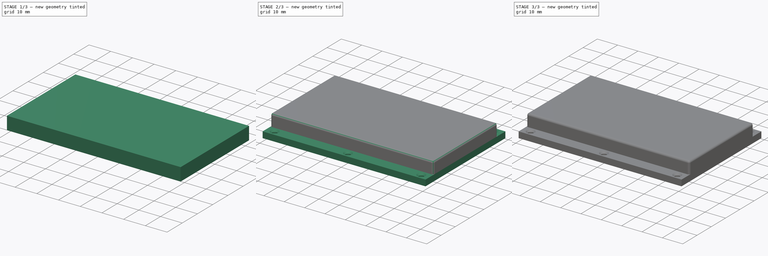
[diagram: build sequence overview — one tinted view per stage of 3, left to right]
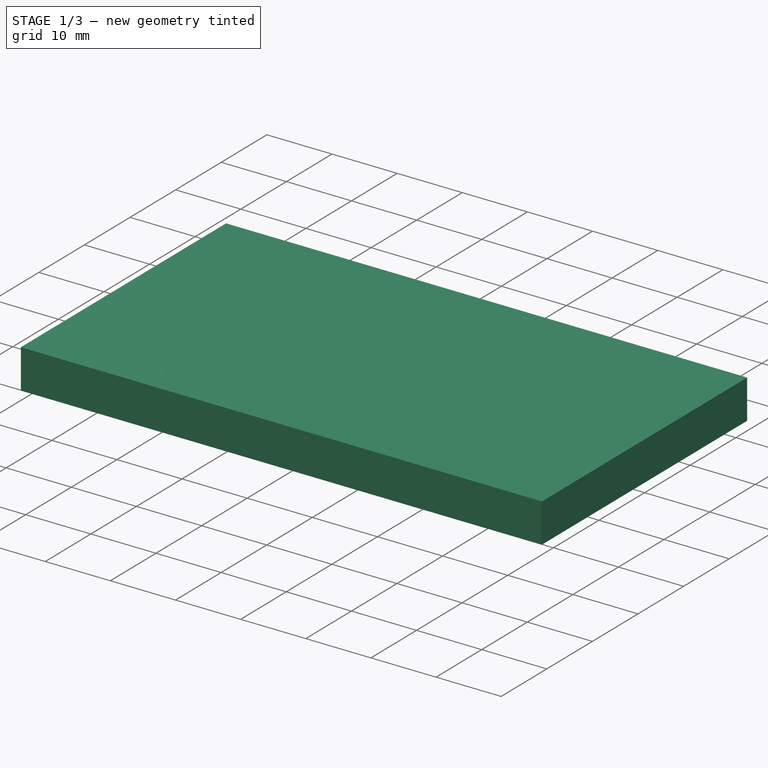
[diagram: stage 1 of 3 — iso view after this stage's code; geometry added in this stage tinted green]
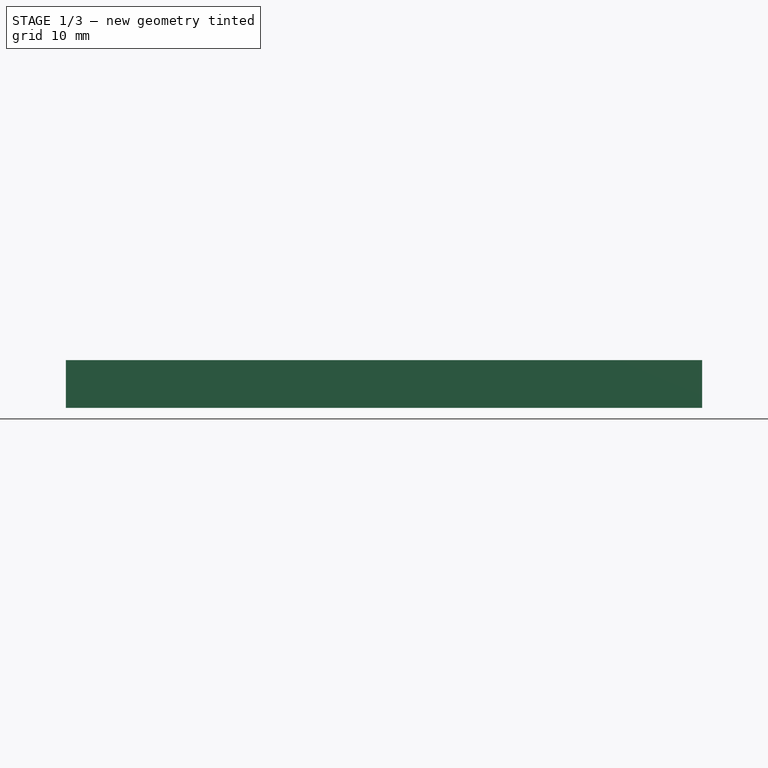
[diagram: stage 1 of 3 — front view after this stage's code; geometry added in this stage tinted green]
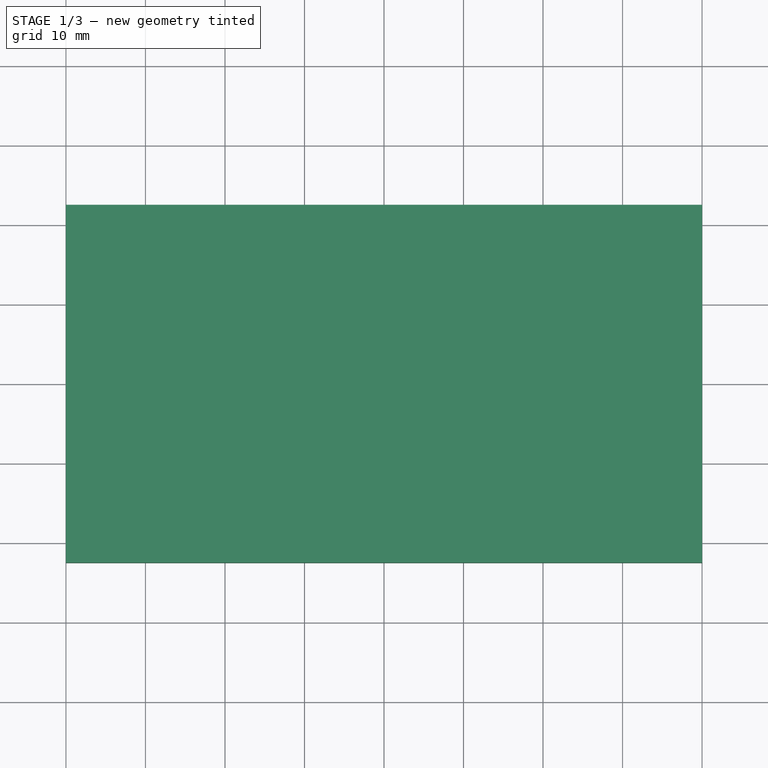
[diagram: stage 1 of 3 — top view after this stage's code; geometry added in this stage tinted green]
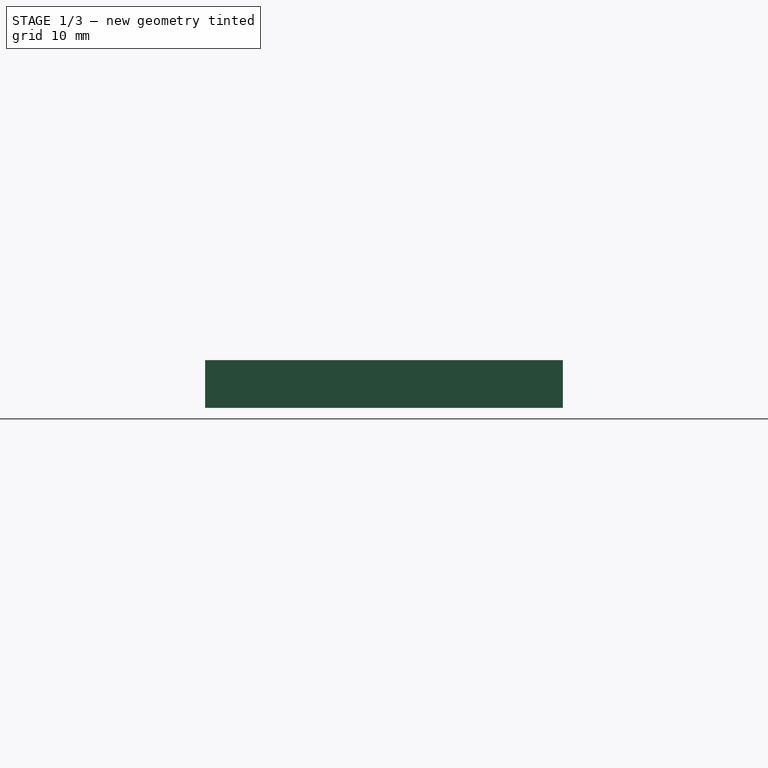
[diagram: stage 1 of 3 — right view after this stage's code; geometry added in this stage tinted green]
FCSTD DOCUMENT  (FreeCAD 0.21R33771 (Git))
Label: CentelladorV2
License: All rights reserved
LicenseURL: http://en.wikipedia.org/wiki/All_rights_reserved
objects: Sketcher::SketchObject×7, PartDesign::Pad×5, PartDesign::Body×3, PartDesign::Hole×1, PartDesign::Fillet×1
note: 24 computed .brp shape members not serialized (recipe doc carries the construction recipe); baked Part::Feature solids carry a one-line shape summary decoded from their .brp

FEATURE [PartDesign::Body] Body003  label="Centellador_1"
  Group = -> [Sketch003,Pad003]
  Origin = -> Origin003
  Tip = -> Pad003
FEATURE [PartDesign::Pad] Pad002
  Direction = (0,0,1)
  Length = 3
  Length2 = 10
  Profile = -> Sketch002
  ReferenceAxis = -> Sketch002 [N_Axis]
  Type = 0
FEATURE [Sketcher::SketchObject] Sketch
  FullyConstrained = true
  MapMode = 5
  Placement = pos=(0,0,3) rot=(0,0,1;0rad)
  Support = -> [Pad002]
  sketch-geometry (5):
    g0: LineSegment StartX=-40 StartY=-22.5 StartZ=0 EndX=-40 EndY=22.5 EndZ=0
    g1: LineSegment StartX=-40 StartY=22.5 StartZ=0 EndX=40 EndY=22.5 EndZ=0
    g2: LineSegment StartX=40 StartY=22.5 StartZ=0 EndX=40 EndY=-22.5 EndZ=0
    g3: LineSegment StartX=40 StartY=-22.5 StartZ=0 EndX=-40 EndY=-22.5 EndZ=0
    g4: GeomPoint X=0 Y=0 Z=0
  constraints (12):
    c: Coincident(g0,g1)
    c: Coincident(g1,g2)
    c: Coincident(g2,g3)
    c: Coincident(g3,g0)
    c: Horizontal(g1)
    c: Horizontal(g3)
    c: Vertical(g0)
    c: Vertical(g2)
    c: Symmetric(g1,g0,g4)
    c: Coincident(g4,g-1)
    c: Distance(g2) = 45
    c: Distance(g3) = 80
FEATURE [PartDesign::Pad] Pad
  BaseFeature = -> Pad002
  Direction = (0,0,1)
  Length = 3
  Length2 = 10
  Profile = -> Sketch
  ReferenceAxis = -> Sketch [N_Axis]
  Type = 0
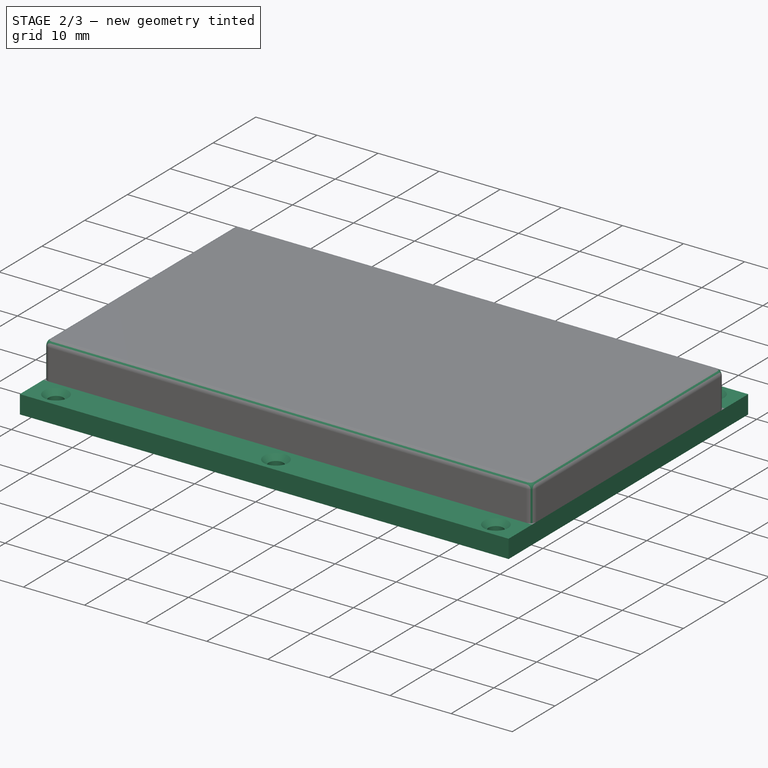
[diagram: stage 2 of 3 — iso view after this stage's code; geometry added in this stage tinted green]
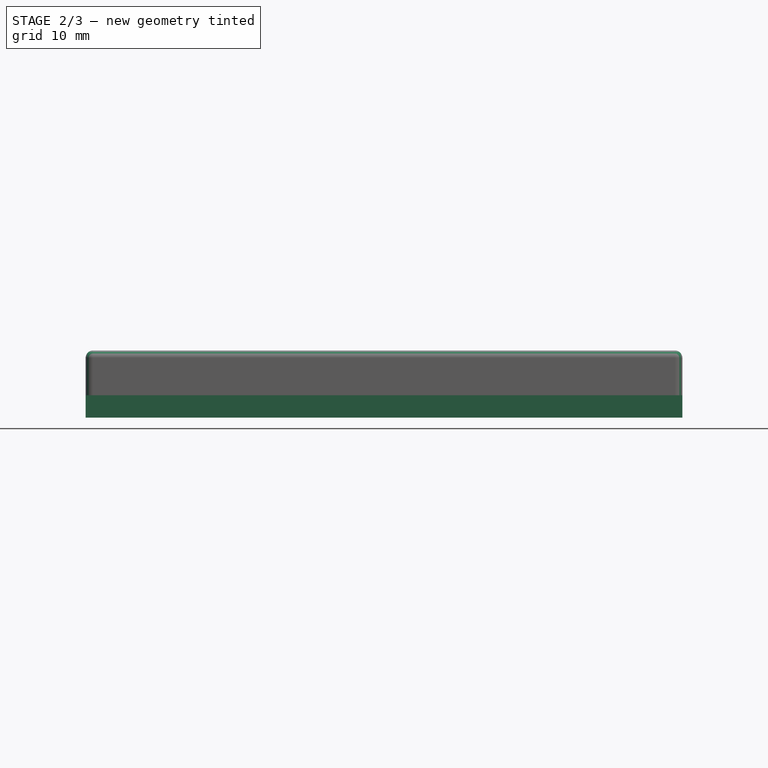
[diagram: stage 2 of 3 — front view after this stage's code; geometry added in this stage tinted green]
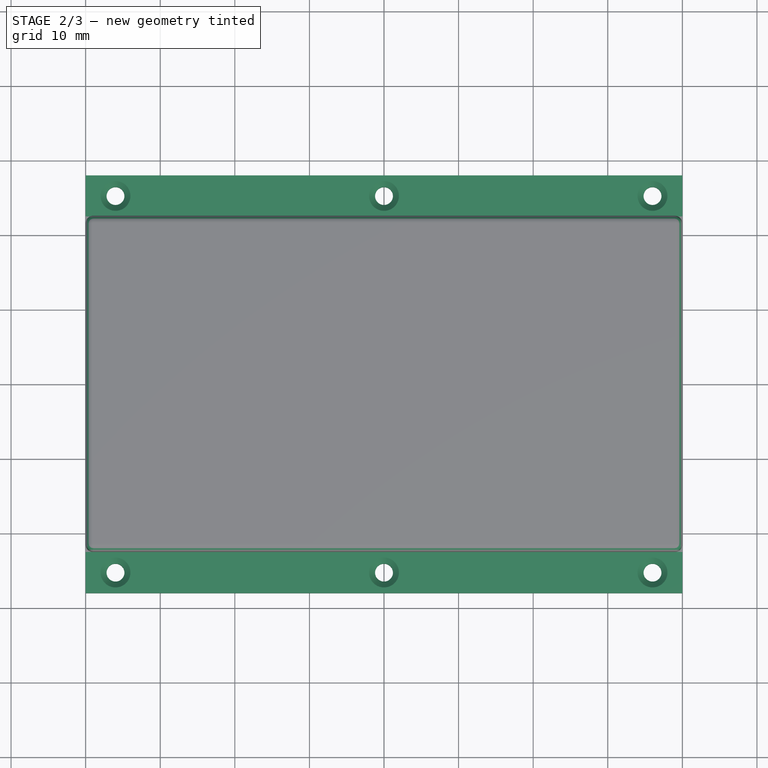
[diagram: stage 2 of 3 — top view after this stage's code; geometry added in this stage tinted green]
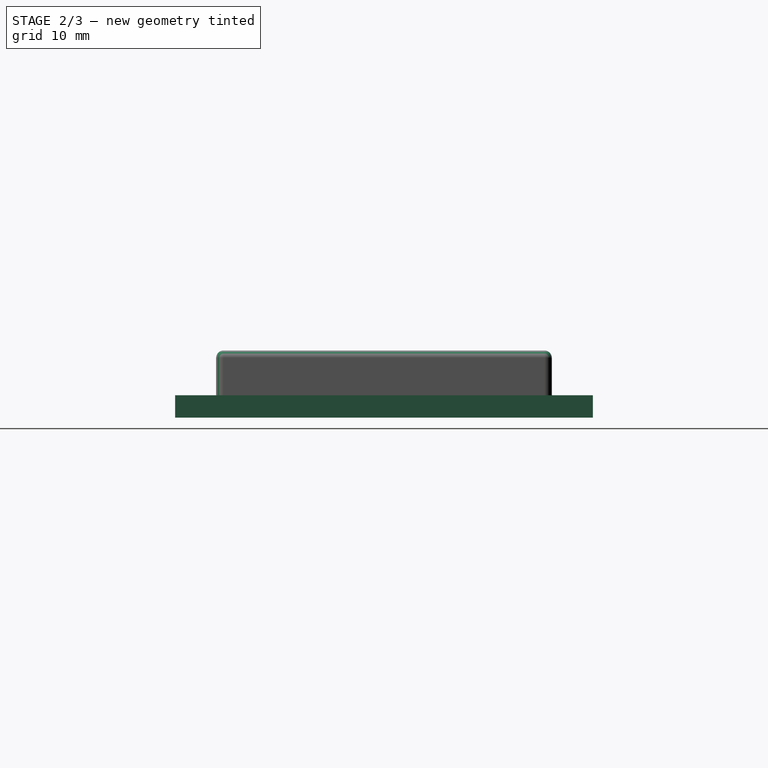
[diagram: stage 2 of 3 — right view after this stage's code; geometry added in this stage tinted green]
FEATURE [Sketcher::SketchObject] Sketch004
  FullyConstrained = true
  MapMode = 5
  Placement = pos=(0,0,0) rot=(1,0,0;3.14159rad)
  Support = -> [Pad]
FEATURE [Sketcher::SketchObject] Sketch005
  FullyConstrained = true
  MapMode = 5
  Placement = pos=(0,0,0) rot=(1,0,0;3.14159rad)
  Support = -> [Pad]
  sketch-geometry (17):
    g0: LineSegment StartX=-40 StartY=-28 StartZ=0 EndX=-40 EndY=28 EndZ=0
    g1: LineSegment StartX=-40 StartY=28 StartZ=0 EndX=40 EndY=28 EndZ=0
    g2: LineSegment StartX=40 StartY=28 StartZ=0 EndX=40 EndY=-28 EndZ=0
    g3: LineSegment StartX=40 StartY=-28 StartZ=0 EndX=-40 EndY=-28 EndZ=0
    g4: GeomPoint X=0 Y=0 Z=0
    g5: LineSegment StartX=-37.5 StartY=20 StartZ=0 EndX=-2.5 EndY=20 EndZ=0
    g6: LineSegment StartX=-2.5 StartY=20 StartZ=0 EndX=-2.5 EndY=6 EndZ=0
    g7: LineSegment StartX=-2.5 StartY=-20 StartZ=0 EndX=-37.5 EndY=-20 EndZ=0
    g8: LineSegment StartX=-37.5 StartY=-20 StartZ=0 EndX=-37.5 EndY=20 EndZ=0
    g9: LineSegment StartX=2.5 StartY=20 StartZ=0 EndX=37.5 EndY=20 EndZ=0
    g10: LineSegment StartX=37.5 StartY=20 StartZ=0 EndX=37.5 EndY=-20 EndZ=0
    g11: LineSegment StartX=37.5 StartY=-20 StartZ=0 EndX=2.5 EndY=-20 EndZ=0
    g12: LineSegment StartX=2.5 StartY=-20 StartZ=0 EndX=2.5 EndY=-6 EndZ=0
    g13: LineSegment StartX=-2.5 StartY=6 StartZ=0 EndX=2.5 EndY=6 EndZ=0
    g14: LineSegment StartX=-2.5 StartY=-6 StartZ=0 EndX=2.5 EndY=-6 EndZ=0
    g15: LineSegment StartX=-2.5 StartY=-6 StartZ=0 EndX=-2.5 EndY=-20 EndZ=0
    g16: LineSegment StartX=2.5 StartY=6 StartZ=0 EndX=2.5 EndY=20 EndZ=0
  constraints (48):
    c: Coincident(g0,g1)
    c: Coincident(g1,g2)
    c: Coincident(g2,g3)
    c: Coincident(g3,g0)
    c: Horizontal(g1)
    c: Horizontal(g3)
    c: Vertical(g0)
    c: Vertical(g2)
    c: Symmetric(g1,g0,g4)
    c: Coincident(g4,g-1)
    c: Distance(g1) = 80
    c: Distance(g2) = 56
    c: Coincident(g5,g6)
    c: Coincident(g15,g7)
    c: Coincident(g7,g8)
    c: Coincident(g8,g5)
    c: Horizontal(g5)
    c: Horizontal(g7)
    c: Vertical(g6)
    c: Vertical(g8)
    c: Distance(g8) = 40
    c: Distance(g5) = 35
    c: DistanceY(g4,g5) = 20
    c: Distance(g4,g6) = 2.5
    c: Coincident(g9,g10)
    c: Coincident(g10,g11)
    c: Coincident(g11,g12)
    c: Coincident(g16,g9)
    c: Horizontal(g9)
    c: Horizontal(g11)
    c: Vertical(g10)
    c: Vertical(g12)
    c: Distance(g10) = 40
    c: Distance(g9) = 35
    c: Distance(g4,g12) = 2.5
    c: Distance(g4,g9) = 20
    c: Horizontal(g13)
    c: Horizontal(g14)
    c: Coincident(g6,g13)
    c: Coincident(g15,g14)
    c: Coincident(g12,g14)
    c: Coincident(g16,g13)
    c: Distance(g4,g13) = 6
    c: Distance(g4,g14) = 6
    c: Vertical(g16)
    c: Vertical(g15)
    c: Distance(g6,g16) = 5
    c: Distance(g12,g15) = 5
FEATURE [PartDesign::Pad] Pad004
  BaseFeature = -> Pad
  Direction = (0,0,-1)
  Length = 3
  Length2 = 10
  Profile = -> Sketch005
  ReferenceAxis = -> Sketch005 [N_Axis]
  Type = 0
FEATURE [Sketcher::SketchObject] Sketch006
  FullyConstrained = true
  MapMode = 5
  Support = -> [Pad004]
  sketch-geometry (6):
    g0: Circle CenterX=-36 CenterY=-25.25 CenterZ=0 NormalX=0 NormalY=0 NormalZ=1 AngleXU=0 Radius=1
    g1: Circle CenterX=0 CenterY=-25.25 CenterZ=0 NormalX=0 NormalY=0 NormalZ=1 AngleXU=0 Radius=1
    g2: Circle CenterX=36 CenterY=-25.25 CenterZ=0 NormalX=0 NormalY=0 NormalZ=1 AngleXU=0 Radius=1
    g3: Circle CenterX=-36 CenterY=25.25 CenterZ=0 NormalX=0 NormalY=0 NormalZ=1 AngleXU=0 Radius=1
    g4: Circle CenterX=0 CenterY=25.25 CenterZ=0 NormalX=0 NormalY=0 NormalZ=1 AngleXU=0 Radius=1
    g5: Circle CenterX=36 CenterY=25.25 CenterZ=0 NormalX=0 NormalY=0 NormalZ=1 AngleXU=0 Radius=1
  constraints (18):
    c: PointOnObject(g1,g-2)
    c: Horizontal(g0,g1)
    c: Horizontal(g1,g2)
    c: Equal(g0,g1)
    c: Equal(g1,g2)
    c: Distance(g0,g-2) = 36
    c: Distance(g2,g-2) = 36
    c: Distance(g1,g-1) = 25.25
    c: Equal(g3,g4)
    c: Equal(g4,g5)
    c: Equal(g3,g0)
    c: Vertical(g3,g0)
    c: Horizontal(g3,g4)
    c: Horizontal(g4,g5)
    c: Vertical(g4,g1)
    c: Vertical(g5,g2)
    c: Distance(g4,g-1) = 25.25
    c: Radius(g0) = 1
FEATURE [PartDesign::Hole] Hole
  BaseFeature = -> Pad004
  CustomThreadClearance = 0
  Depth = 198.867
  DepthType = 0
  Diameter = 2.4
  DrillForDepth = false
  DrillPoint = 0
  DrillPointAngle = 118
  HoleCutCountersinkAngle = 90
  HoleCutCustomValues = false
  HoleCutDepth = 0.5
  HoleCutDiameter = 4
  HoleCutType = 2
  ModelThread = false
  Profile = -> Sketch006
  Tapered = false
  TaperedAngle = 90
  ThreadClass = 0
  ThreadDepth = 198.867
  ThreadDepthType = 0
  ThreadDirection = 0
  ThreadFit = 0
  ThreadSize = 6
  ThreadType = 1
  Threaded = false
  UseCustomThreadClearance = false
  expr: HoleCutDepth = 0.5 mm
  expr: HoleCutDiameter = 4 mm
FEATURE [PartDesign::Fillet] Fillet
  Base = -> Hole [Edge26,Edge5,Edge33,Edge8,Edge16,Edge1,Edge17,Edge2,Edge18,Edge27,Edge34,Edge58]
  BaseFeature = -> Hole
  Radius = 1
  SupportTransform = false
  UseAllEdges = false
FEATURE [PartDesign::Body] Body002  label="Cuerpo"
  Group = -> [Sketch002,Pad002,Sketch,Pad,Sketch004,Sketch005,Pad004,Sketch006,Hole,Fillet]
  Origin = -> Origin002
  Tip = -> Fillet
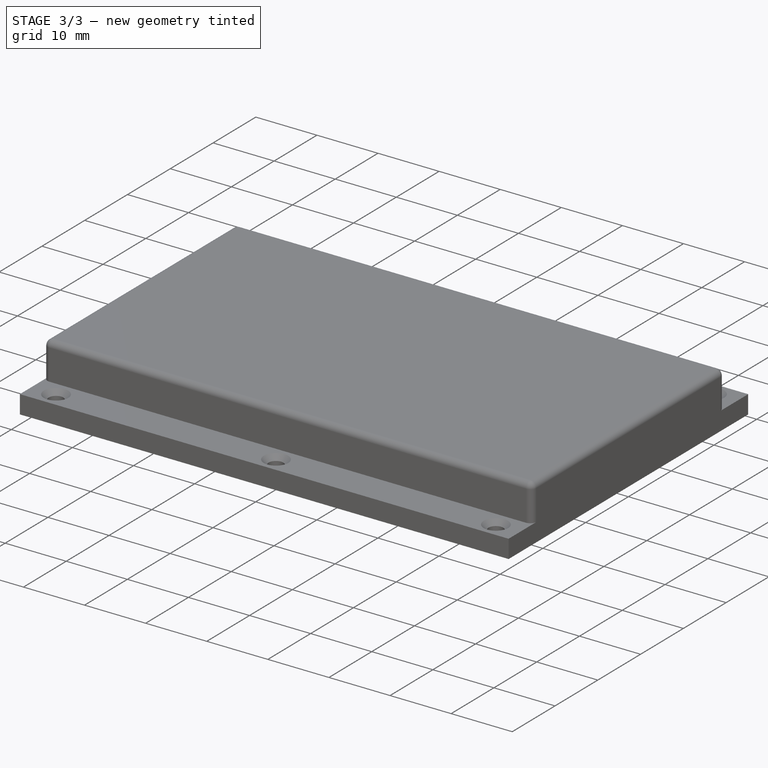
[diagram: stage 3 of 3 — iso view after this stage's code; geometry added in this stage tinted green]
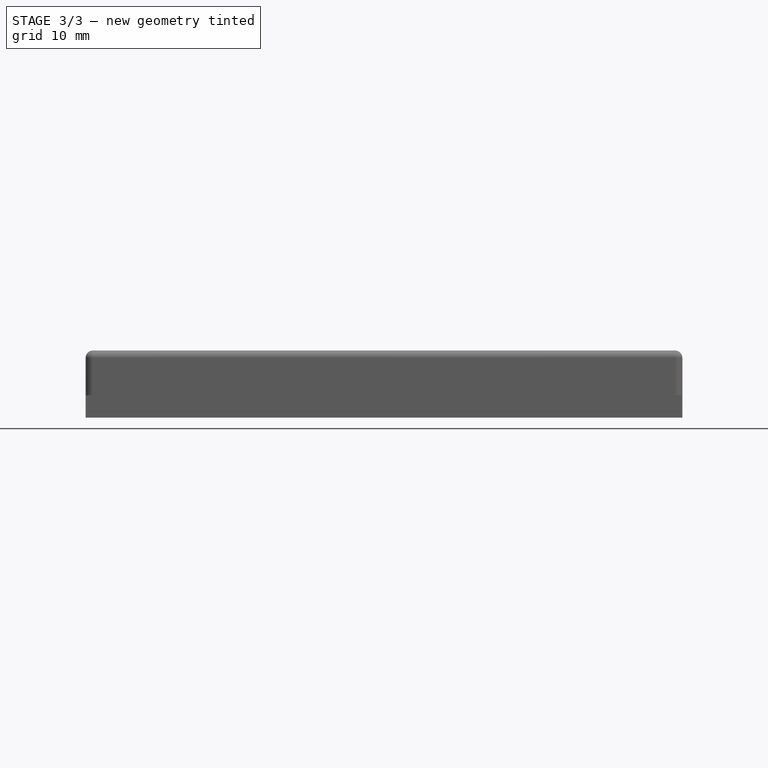
[diagram: stage 3 of 3 — front view after this stage's code; geometry added in this stage tinted green]
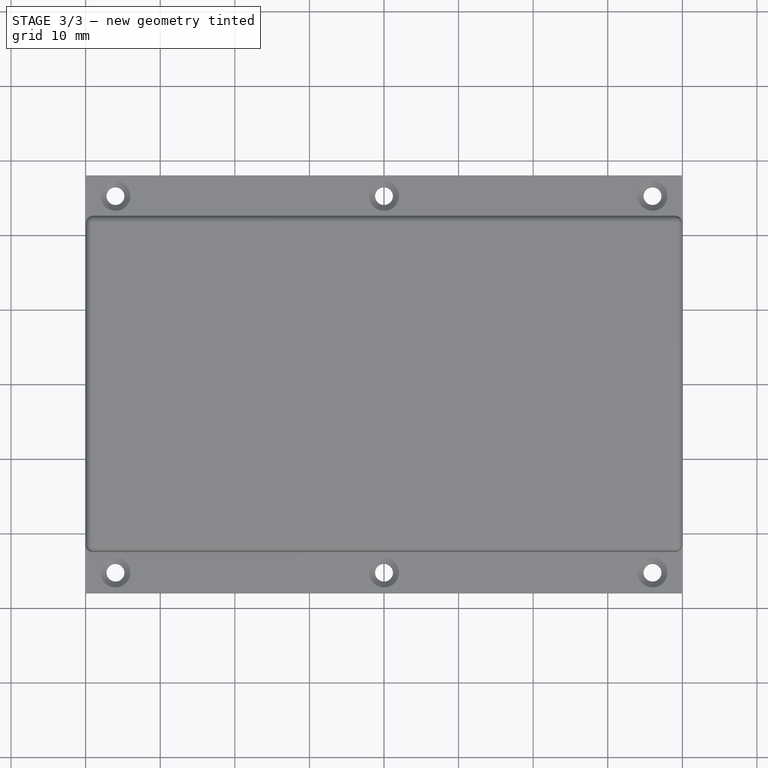
[diagram: stage 3 of 3 — top view after this stage's code; geometry added in this stage tinted green]
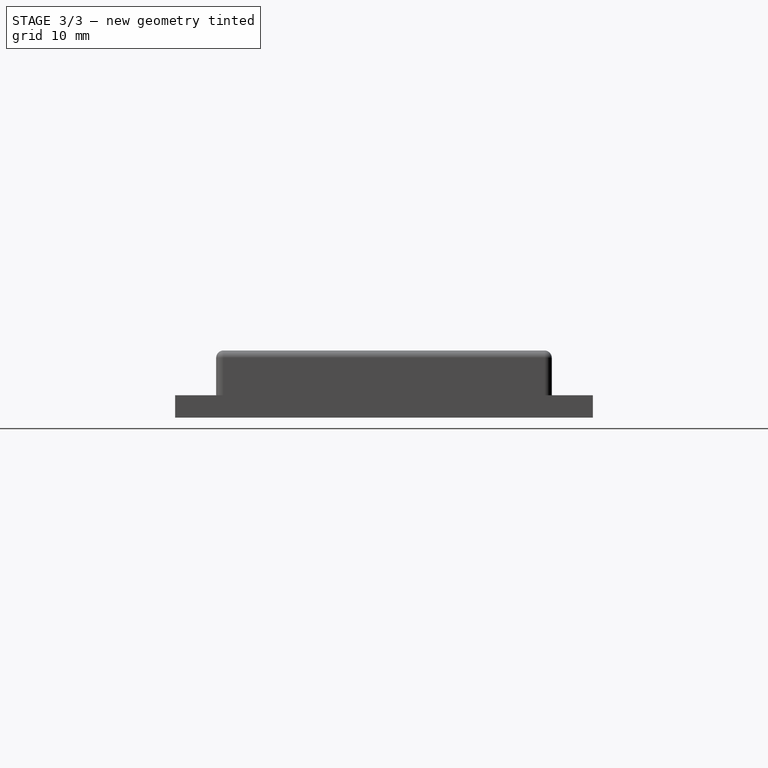
[diagram: stage 3 of 3 — right view after this stage's code; geometry added in this stage tinted green]
FEATURE [Sketcher::SketchObject] Sketch001
  FullyConstrained = true
  MapMode = 5
  Support = -> [XY_Plane001]
  sketch-geometry (9):
    g0: LineSegment StartX=37.5 StartY=-15 StartZ=0 EndX=37.5 EndY=15 EndZ=0
    g1: LineSegment StartX=32.5 StartY=20 StartZ=0 EndX=7.5 EndY=20 EndZ=0
    g2: LineSegment StartX=2.5 StartY=15 StartZ=0 EndX=2.5 EndY=-15 EndZ=0
    g3: LineSegment StartX=7.5 StartY=-20 StartZ=0 EndX=32.5 EndY=-20 EndZ=0
    g4: GeomPoint X=0 Y=0 Z=0
    g5: ArcOfCircle CenterX=7.5 CenterY=-15 CenterZ=0 NormalX=0 NormalY=0 NormalZ=1 AngleXU=0 Radius=5 StartAngle=3.14159 EndAngle=4.71239
    g6: ArcOfCircle CenterX=32.5 CenterY=-15 CenterZ=0 NormalX=0 NormalY=0 NormalZ=1 AngleXU=0 Radius=5 StartAngle=4.71239 EndAngle=6.28319
    g7: ArcOfCircle CenterX=7.5 CenterY=15 CenterZ=0 NormalX=0 NormalY=0 NormalZ=1 AngleXU=0 Radius=5 StartAngle=1.5708 EndAngle=3.14159
    g8: ArcOfCircle CenterX=32.5 CenterY=15 CenterZ=0 NormalX=0 NormalY=0 NormalZ=1 AngleXU=0 Radius=5 StartAngle=0 EndAngle=1.5708
  constraints (21):
    c: Horizontal(g1)
    c: Horizontal(g3)
    c: Vertical(g0)
    c: Vertical(g2)
    c: Coincident(g4,g-1)
    c: Distance(g5,g3) = 5
    c: Tangent(g3,g5) = -1.5708
    c: Tangent(g2,g5) = -1.5708
    c: Tangent(g0,g6) = -1.5708
    c: Tangent(g3,g6) = -1.5708
    c: Distance(g3,g6) = 5
    c: Tangent(g1,g7) = -1.5708
    c: Tangent(g2,g7) = -1.5708
    c: Distance(g1,g7) = 5
    c: Tangent(g0,g8) = -1.5708
    c: Tangent(g1,g8) = -1.5708
    c: Distance(g1,g8) = 5
    c: DistanceX(g4,g0) = 37.5
    c: DistanceX(g2,g0) = 35
    c: DistanceY(g4,g1) = 20
    c: DistanceY(g3,g1) = 40
FEATURE [PartDesign::Pad] Pad001
  Direction = (0,0,1)
  Length = 3
  Length2 = 10
  Profile = -> Sketch001
  ReferenceAxis = -> Sketch001 [N_Axis]
  Type = 0
FEATURE [PartDesign::Body] Body001  label="Centellador_2"
  Group = -> [Sketch001,Pad001]
  Origin = -> Origin001
  Tip = -> Pad001
FEATURE [Sketcher::SketchObject] Sketch002
  FullyConstrained = true
  MapMode = 2
  Support = -> [Sketch002]
  sketch-geometry (14):
    g0: LineSegment StartX=-40 StartY=-22.5 StartZ=0 EndX=-40 EndY=22.5 EndZ=0
    g1: LineSegment StartX=-40 StartY=22.5 StartZ=0 EndX=40 EndY=22.5 EndZ=0
    g2: LineSegment StartX=40 StartY=22.5 StartZ=0 EndX=40 EndY=-22.5 EndZ=0
    g3: LineSegment StartX=40 StartY=-22.5 StartZ=0 EndX=-40 EndY=-22.5 EndZ=0
    g4: GeomPoint X=0 Y=0 Z=0
    g5: LineSegment StartX=-37.5 StartY=-20 StartZ=0 EndX=-37.5 EndY=20 EndZ=0
    g6: LineSegment StartX=37.5 StartY=20 StartZ=0 EndX=37.5 EndY=-20 EndZ=0
    g7: GeomPoint X=0 Y=0 Z=0
    g8: LineSegment StartX=-37.5 StartY=-20 StartZ=0 EndX=-2.5 EndY=-20 EndZ=0
    g9: LineSegment StartX=-2.5 StartY=-20 StartZ=0 EndX=-2.5 EndY=20 EndZ=0
    g10: LineSegment StartX=-37.5 StartY=20 StartZ=0 EndX=-2.5 EndY=20 EndZ=0
    g11: LineSegment StartX=37.5 StartY=20 StartZ=0 EndX=2.5 EndY=20 EndZ=0
    g12: LineSegment StartX=2.5 StartY=20 StartZ=0 EndX=2.5 EndY=-20 EndZ=0
    g13: LineSegment StartX=2.5 StartY=-20 StartZ=0 EndX=37.5 EndY=-20 EndZ=0
  constraints (36):
    c: Coincident(g0,g1)
    c: Coincident(g1,g2)
    c: Coincident(g2,g3)
    c: Coincident(g3,g0)
    c: Horizontal(g1)
    c: Horizontal(g3)
    c: Vertical(g0)
    c: Vertical(g2)
    c: Symmetric(g1,g0,g4)
    c: Coincident(g4,g-1)
    c: Distance(g1) = 80
    c: Distance(g0) = 45
    c: Vertical(g5)
    c: Vertical(g6)
    c: Symmetric(g6,g5,g7)
    c: Coincident(g7,g4)
    c: Distance(g6) = 40
    c: Coincident(g8,g5)
    c: Horizontal(g8)
    c: Coincident(g9,g8)
    c: Vertical(g9)
    c: Coincident(g10,g5)
    c: Coincident(g10,g9)
    c: Horizontal(g10)
    c: Coincident(g11,g6)
    c: Horizontal(g11)
    c: Coincident(g12,g11)
    c: Vertical(g12)
    c: Coincident(g13,g12)
    c: Coincident(g13,g6)
    c: Horizontal(g13)
    c: Distance(g5) = 40
    c: Distance(g10) = 35
    c: Distance(g4,g9) = 2.5
    c: Distance(g4,g8) = 20
    c: Distance(g13) = 35
FEATURE [Sketcher::SketchObject] Sketch003
  FullyConstrained = true
  MapMode = 5
  Support = -> [XY_Plane003]
  sketch-geometry (9):
    g0: LineSegment StartX=-2.5 StartY=-15 StartZ=0 EndX=-2.5 EndY=15 EndZ=0
    g1: LineSegment StartX=-7.5 StartY=20 StartZ=0 EndX=-32.5 EndY=20 EndZ=0
    g2: LineSegment StartX=-37.5 StartY=15 StartZ=0 EndX=-37.5 EndY=-15 EndZ=0
    g3: LineSegment StartX=-32.5 StartY=-20 StartZ=0 EndX=-7.5 EndY=-20 EndZ=0
    g4: GeomPoint X=0 Y=0 Z=0
    g5: ArcOfCircle CenterX=-32.5 CenterY=-15 CenterZ=0 NormalX=0 NormalY=0 NormalZ=1 AngleXU=0 Radius=5 StartAngle=3.14159 EndAngle=4.71239
    g6: ArcOfCircle CenterX=-7.5 CenterY=-15 CenterZ=0 NormalX=0 NormalY=0 NormalZ=1 AngleXU=0 Radius=5 StartAngle=4.71239 EndAngle=6.28319
    g7: ArcOfCircle CenterX=-32.5 CenterY=15 CenterZ=0 NormalX=0 NormalY=0 NormalZ=1 AngleXU=0 Radius=5 StartAngle=1.5708 EndAngle=3.14159
    g8: ArcOfCircle CenterX=-7.5 CenterY=15 CenterZ=0 NormalX=0 NormalY=0 NormalZ=1 AngleXU=0 Radius=5 StartAngle=4.18e-14 EndAngle=1.5708
  constraints (21):
    c: Horizontal(g1)
    c: Horizontal(g3)
    c: Vertical(g0)
    c: Vertical(g2)
    c: Coincident(g4,g-1)
    c: Distance(g5,g3) = 5
    c: Tangent(g3,g5) = -1.5708
    c: Tangent(g2,g5) = -1.5708
    c: Tangent(g0,g6) = -1.5708
    c: Tangent(g3,g6) = -1.5708
    c: Distance(g3,g6) = 5
    c: Tangent(g1,g7) = -1.5708
    c: Tangent(g2,g7) = -1.5708
    c: Distance(g1,g7) = 5
    c: Tangent(g0,g8) = -1.5708
    c: Tangent(g1,g8) = -1.5708
    c: Distance(g1,g8) = 5
    c: DistanceX(g4,g0) = -2.5
    c: DistanceX(g2,g0) = 35
    c: DistanceY(g4,g1) = 20
    c: DistanceY(g3,g1) = 40
FEATURE [PartDesign::Pad] Pad003
  Direction = (0,0,1)
  Length = 3
  Length2 = 10
  Profile = -> Sketch003
  ReferenceAxis = -> Sketch003 [N_Axis]
  Type = 0
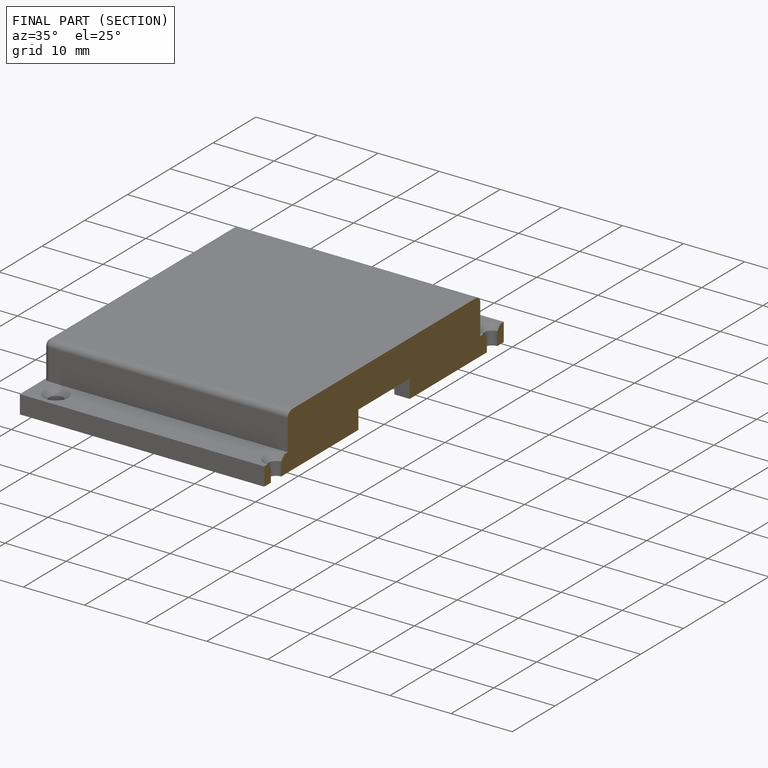
[diagram: finished part — half-section view (interior)]
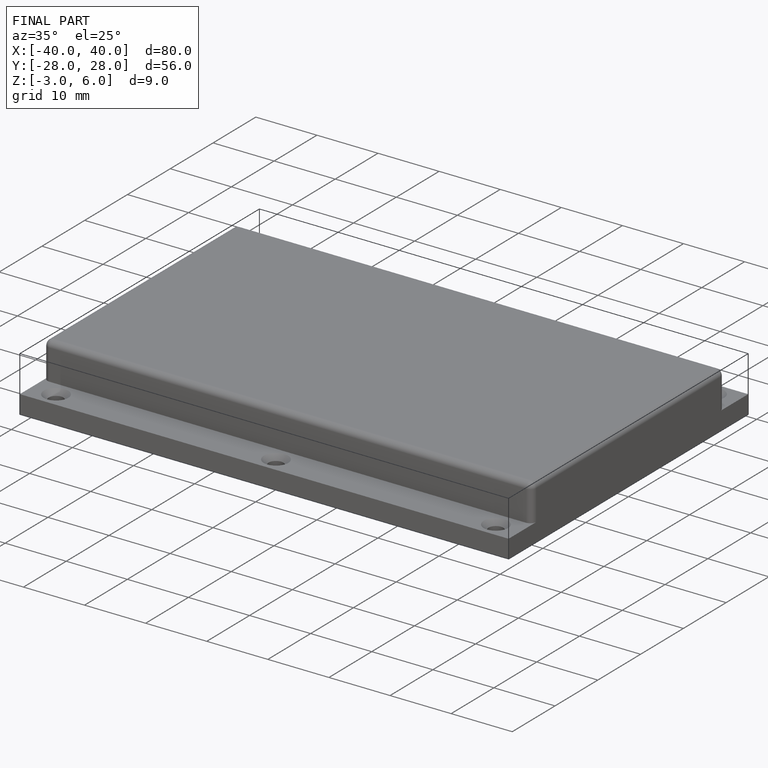
[diagram: finished part — iso view with bounding-box wireframe]
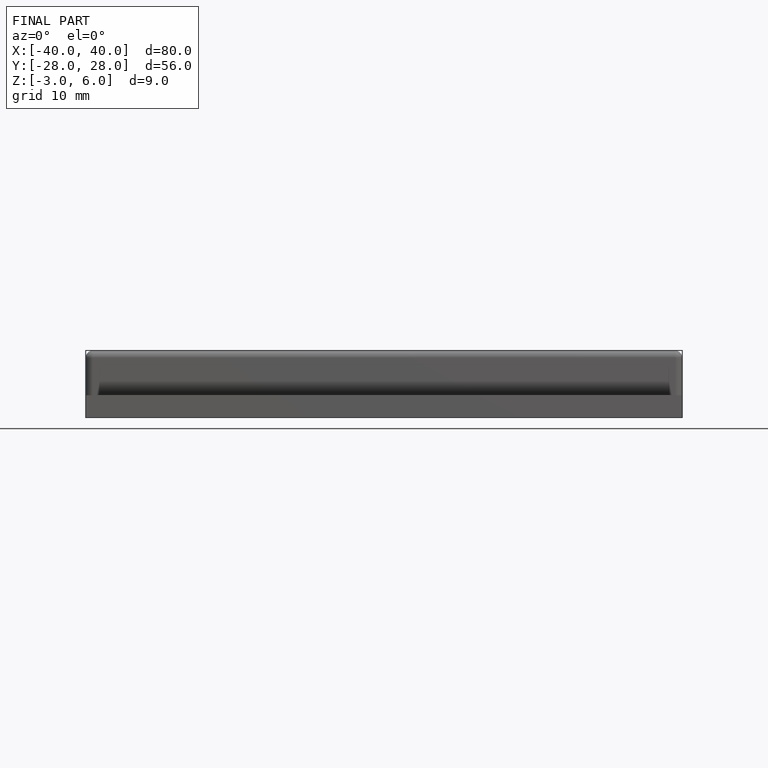
[diagram: finished part — front view with bounding-box wireframe]
